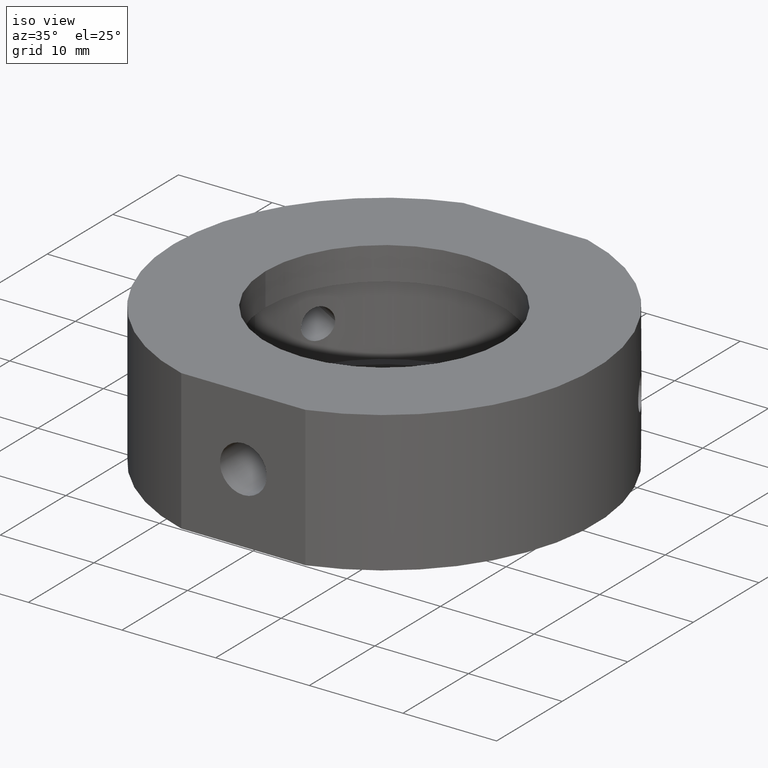
[diagram: clean part render]
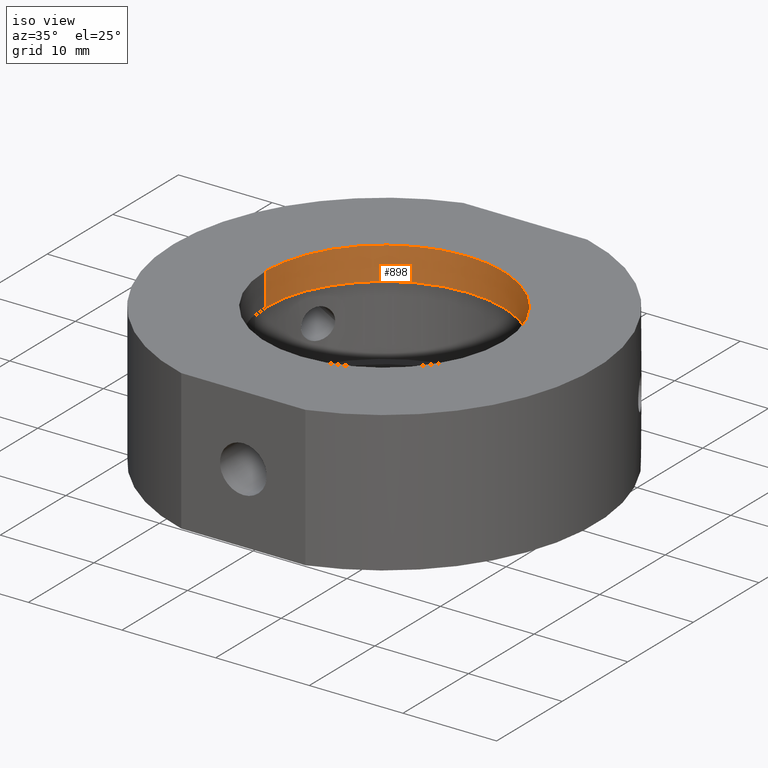
[diagram: same view with one face highlighted and labeled with its STEP entity id]
A machine part, iso view. The second image highlights one B-rep face of the part: STEP entity #898.
In plain terms, the highlighted cylindrical surface (partial cylindrical patch) has radius 12.7 mm, axis along (-0, -0, -1).
Its self-contained STEP definition (entity closure, byte-faithful):
#30 = EDGE_CURVE ( 'NONE', #881, #289, #318, .T. ) ;
#33 = AXIS2_PLACEMENT_3D ( 'NONE', #613, #713, #810 ) ;
#121 = DIRECTION ( 'NONE',  ( -1.224646799147350500E-016, -0.0000000000000000000, -1.000000000000000000 ) ) ;
#125 = CARTESIAN_POINT ( 'NONE',  ( -12.69999999999998900, 0.0000000000000000000, 3.999999999999998200 ) ) ;
#160 = AXIS2_PLACEMENT_3D ( 'NONE', #385, #571, #397 ) ;
#269 = CYLINDRICAL_SURFACE ( 'NONE', #1014, 12.69999999999999400 ) ;
#289 = VERTEX_POINT ( 'NONE', #949 ) ;
#318 = CIRCLE ( 'NONE', #160, 12.69999999999999400 ) ;
#354 = EDGE_LOOP ( 'NONE', ( #1087, #512, #530, #457 ) ) ;
#385 = CARTESIAN_POINT ( 'NONE',  ( 4.829892851045828800E-015, 0.0000000000000000000, 7.500000000000000000 ) ) ;
#389 = DIRECTION ( 'NONE',  ( -1.224646799147350500E-016, -0.0000000000000000000, -1.000000000000000000 ) ) ;
#393 = VECTOR ( 'NONE', #121, 1000.000000000000000 ) ;
#397 = DIRECTION ( 'NONE',  ( -1.000000000000000000, 0.0000000000000000000, 1.365923996832132100E-016 ) ) ;
#447 = CIRCLE ( 'NONE', #33, 12.69999999999999400 ) ;
#457 = ORIENTED_EDGE ( 'NONE', *, *, #786, .T. ) ;
#465 = LINE ( 'NONE', #1057, #491 ) ;
#491 = VECTOR ( 'NONE', #986, 1000.000000000000000 ) ;
#512 = ORIENTED_EDGE ( 'NONE', *, *, #30, .F. ) ;
#530 = ORIENTED_EDGE ( 'NONE', *, *, #1000, .T. ) ;
#571 = DIRECTION ( 'NONE',  ( -1.224646799147350500E-016, -0.0000000000000000000, -1.000000000000000000 ) ) ;
#613 = CARTESIAN_POINT ( 'NONE',  ( 4.401266471344255700E-015, 0.0000000000000000000, 3.999999999999996400 ) ) ;
#623 = FACE_OUTER_BOUND ( 'NONE', #354, .T. ) ;
#650 = CARTESIAN_POINT ( 'NONE',  ( 12.69999999999999900, 1.555301434917138000E-015, 3.999999999999994700 ) ) ;
#711 = LINE ( 'NONE', #1093, #393 ) ;
#713 = DIRECTION ( 'NONE',  ( -1.224646799147350500E-016, -0.0000000000000000000, -1.000000000000000000 ) ) ;
#724 = EDGE_CURVE ( 'NONE', #289, #983, #465, .T. ) ;
#747 = DIRECTION ( 'NONE',  ( -1.000000000000000000, 0.0000000000000000000, 0.0000000000000000000 ) ) ;
#786 = EDGE_CURVE ( 'NONE', #1099, #983, #447, .T. ) ;
#810 = DIRECTION ( 'NONE',  ( -1.000000000000000000, 0.0000000000000000000, 1.365923996832132100E-016 ) ) ;
#833 = CARTESIAN_POINT ( 'NONE',  ( 0.0000000000000000000, 0.0000000000000000000, -31.93906810035839800 ) ) ;
#881 = VERTEX_POINT ( 'NONE', #992 ) ;
#898 = ADVANCED_FACE ( 'NONE', ( #623 ), #269, .F. ) ;
#949 = CARTESIAN_POINT ( 'NONE',  ( 12.69999999999999900, 1.555301434917138000E-015, 7.499999999999998200 ) ) ;
#983 = VERTEX_POINT ( 'NONE', #650 ) ;
#986 = DIRECTION ( 'NONE',  ( -1.224646799147350500E-016, -0.0000000000000000000, -1.000000000000000000 ) ) ;
#992 = CARTESIAN_POINT ( 'NONE',  ( -12.69999999999998900, 0.0000000000000000000, 7.500000000000001800 ) ) ;
#1000 = EDGE_CURVE ( 'NONE', #881, #1099, #711, .T. ) ;
#1014 = AXIS2_PLACEMENT_3D ( 'NONE', #833, #389, #747 ) ;
#1057 = CARTESIAN_POINT ( 'NONE',  ( 12.69999999999999400, 1.555301434917138000E-015, -31.93906810035839800 ) ) ;
#1087 = ORIENTED_EDGE ( 'NONE', *, *, #724, .F. ) ;
#1093 = CARTESIAN_POINT ( 'NONE',  ( -12.69999999999999400, 0.0000000000000000000, -31.93906810035839800 ) ) ;
#1099 = VERTEX_POINT ( 'NONE', #125 ) ;